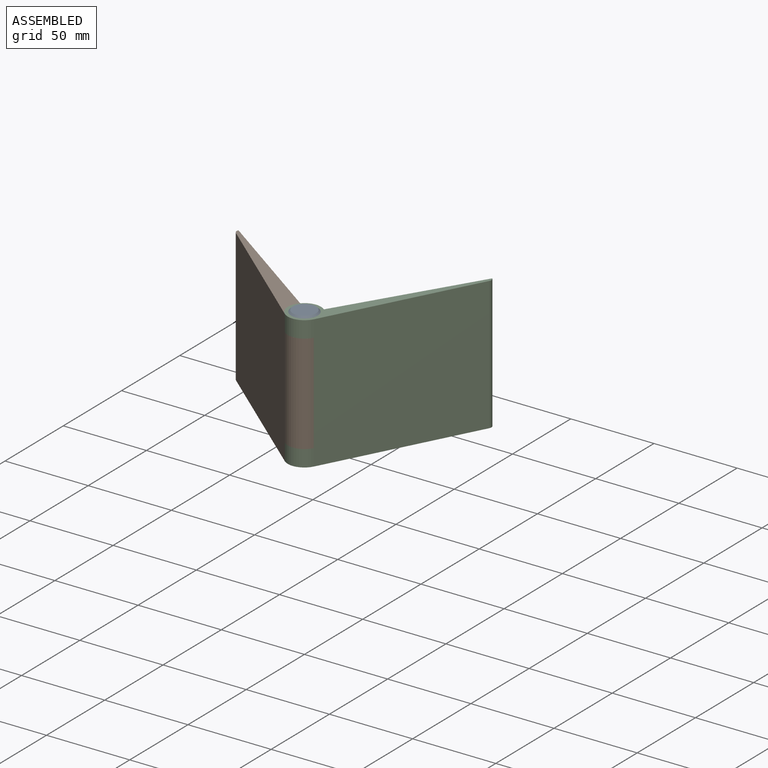
[diagram: assembled view]
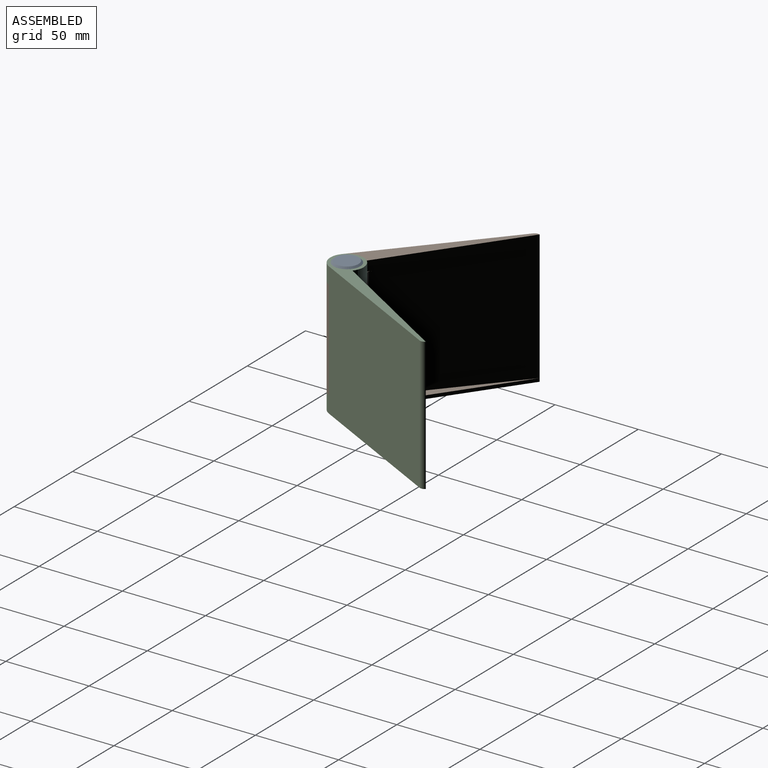
[diagram: assembled view, second angle]
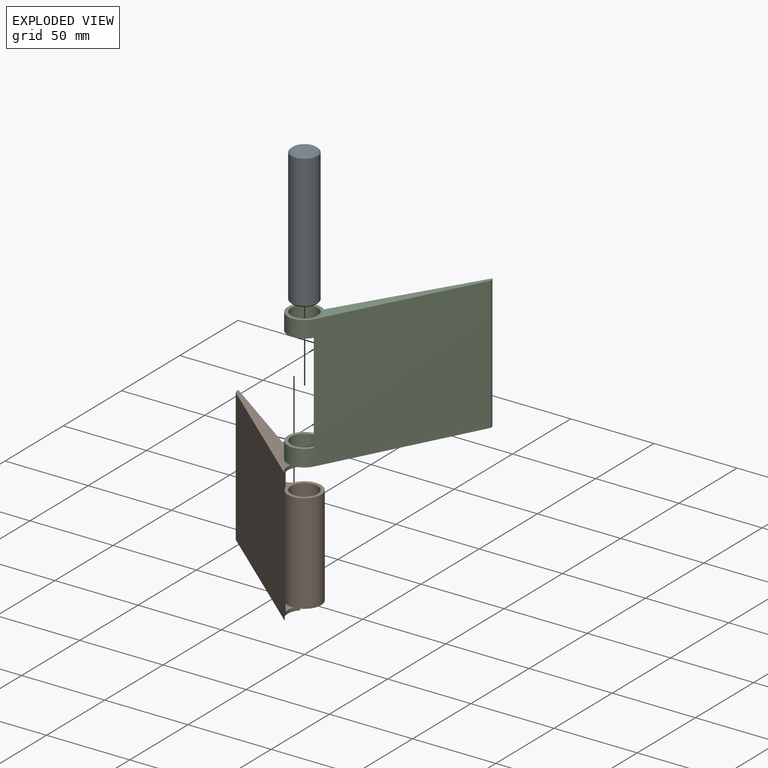
[diagram: exploded view]
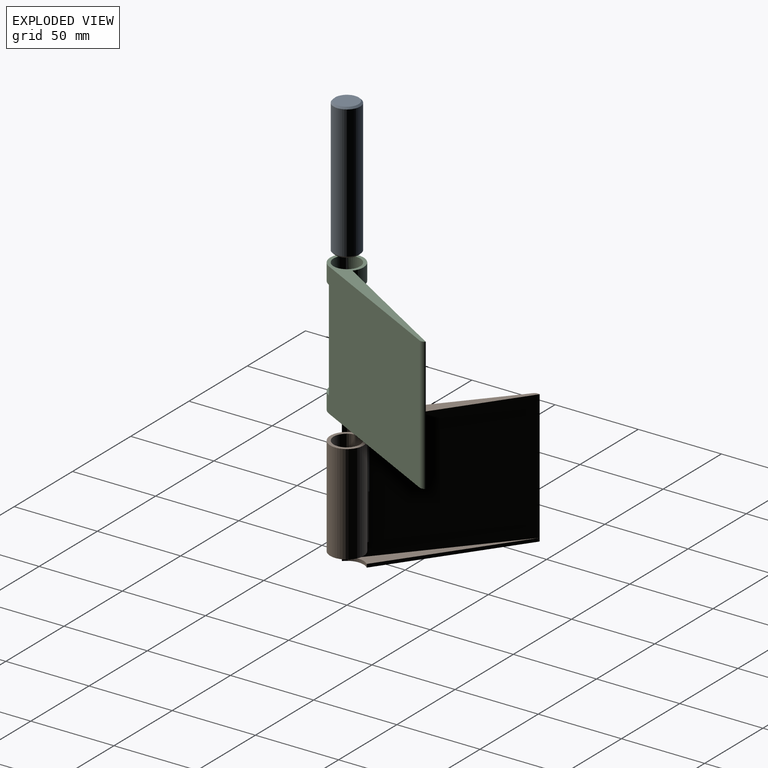
[diagram: exploded view, second angle]
ASSEMBLY  parts=3 mates=2
PART A: 5 faces, bbox 16x16x82 mm
  f0: cylinder r=8mm len=80mm, axis (0,0,-1), area 4021.2mm2, adj f3,f4
  f1: plane 14x14mm, normal (0,0,1), area 153.9mm2, adj f4
  f2: plane 14x14mm, normal (0,0,-1), area 153.9mm2, adj f3
  f3: cone r=8mm half-angle=45deg, axis (0,0,1), area 66.6mm2, adj f0,f2
  f4: cone r=7mm half-angle=45deg, axis (0,0,-1), area 66.6mm2, adj f0,f1
PART B: 15 faces, bbox 110x20x80 mm
  f0: plane 93.96x76mm, normal (0,-1,0), area 6619.1mm2, adj f3,f4,f8,f9,f10,f11,f12,f13
  f1: plane 100x10.42mm, normal (0,0,1), area 578.5mm2, adj f4,f5,f12,f14
  f2: plane 100x10.42mm, normal (0,0,-1), area 578.5mm2, adj f3,f5,f12,f14
  f3: cylinder r=10mm len=10.42mm, axis (0,0,-1), area 83.7mm2, adj f0,f2,f5,f9,f11,f12
  f4: cylinder r=10mm len=10.42mm, axis (0,0,-1), area 83.7mm2, adj f0,f1,f5,f8,f12,f13
  f5: plane 97.17x80mm, normal (0,1,0), area 7773.8mm2, adj f1,f2,f3,f4,f7,f14
  f6: cylinder r=8mm len=60mm, axis (0,0,-1), area 3015.9mm2, adj f8,f9
  f7: cylinder r=10mm len=60mm, axis (0,0,-1), area 2948.2mm2, adj f5,f8,f9,f10
  f8: plane 24.7x20mm, normal (0,0,1), area 126.2mm2, adj f0,f4,f6,f7,f10
  f9: plane 24.7x20mm, normal (0,0,-1), area 126.2mm2, adj f0,f3,f6,f7,f10
  f10: cylinder r=5mm len=60mm, axis (0,0,-1), area 531.6mm2, adj f0,f7,f8,f9
  f11: plane 93.96x8.42mm, normal (0,0,1), area 388.2mm2, adj f0,f3,f12
  f12: plane 90.01x80mm, normal (0.09,-1,0), area 364.7mm2, adj f0,f1,f2,f3,f4,f11,f13,f14
  f13: plane 93.96x8.42mm, normal (0,0,-1), area 388.2mm2, adj f0,f4,f12
  f14: cylinder r=3mm len=80mm, axis (0,0,1), area 295.1mm2, adj f1,f2,f5,f12
PART C: 17 faces, bbox 110x20x80 mm
  f0: cylinder r=8mm len=16mm, axis (0,0,-1), area 502.7mm2, adj f2,f15
  f1: cylinder r=10mm len=20mm, axis (0,0,-1), area 491.4mm2, adj f2,f8,f9,f12,f15
  f2: plane 110x20mm, normal (0,0,-1), area 582.3mm2, adj f0,f1,f8,f12,f16
  f3: plane 90.01x13.63mm, normal (0,0,1), area 265.8mm2, adj f6,f9,f12
  f4: plane 110x20mm, normal (0,0,1), area 582.3mm2, adj f5,f7,f8,f11,f16
  f5: cylinder r=10mm len=20mm, axis (0,0,-1), area 491.4mm2, adj f4,f8,f9,f11,f14
  f6: plane 84.22x76mm, normal (-0.16,0.99,0), area 6483mm2, adj f3,f9,f10,f16
  f7: cylinder r=8mm len=16mm, axis (0,0,-1), area 502.7mm2, adj f4,f14
  f8: plane 95.94x80mm, normal (0.16,-0.99,0), area 7773.7mm2, adj f1,f2,f4,f5,f13,f16
  f9: cylinder r=5mm len=76mm, axis (0,0,1), area 673.4mm2, adj f1,f3,f5,f6,f10,f13
  f10: plane 90.01x13.63mm, normal (0,0,-1), area 265.8mm2, adj f6,f9,f11
  f11: plane 90.01x8.42mm, normal (-0.09,1,0), area 180.8mm2, adj f4,f5,f10,f16
  f12: plane 90.01x8.42mm, normal (-0.09,1,0), area 180.8mm2, adj f1,f2,f3,f16
  f13: cylinder r=10mm len=60mm, axis (0,0,-1), area 821.7mm2, adj f8,f9,f14,f15
  f14: plane 20x20mm, normal (0,0,-1), area 113.1mm2, adj f5,f7,f13
  f15: plane 20x20mm, normal (0,0,1), area 113.1mm2, adj f0,f1,f13
  f16: cylinder r=3mm len=80mm, axis (0,0,1), area 295.4mm2, adj f2,f4,f6,f8,f11,f12
PLACE A at identity fixed
PLACE B rot(axis=(0,0,1),139.3deg) t=(0,0,0)mm
PLACE C rot(axis=(0,0,1),53.2deg) t=(0,0,0)mm
MATE revolute C.f0 <-> A.f0  axis (0,0,-1) through (0,0,40)mm
MATE revolute B.f3 <-> C.f0  axis (0,0,1) through (0,0,30)mm
